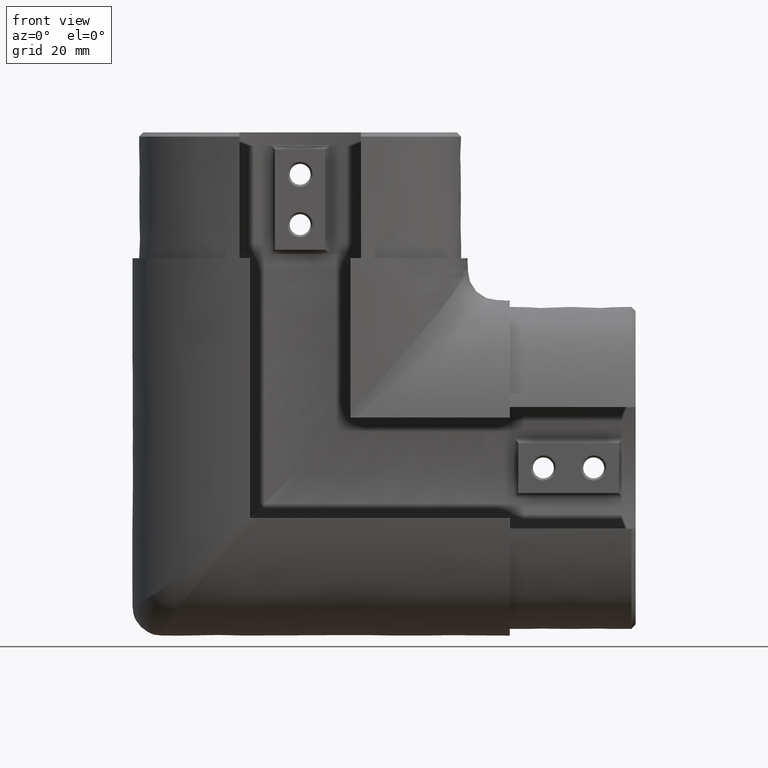
[diagram: clean part render]
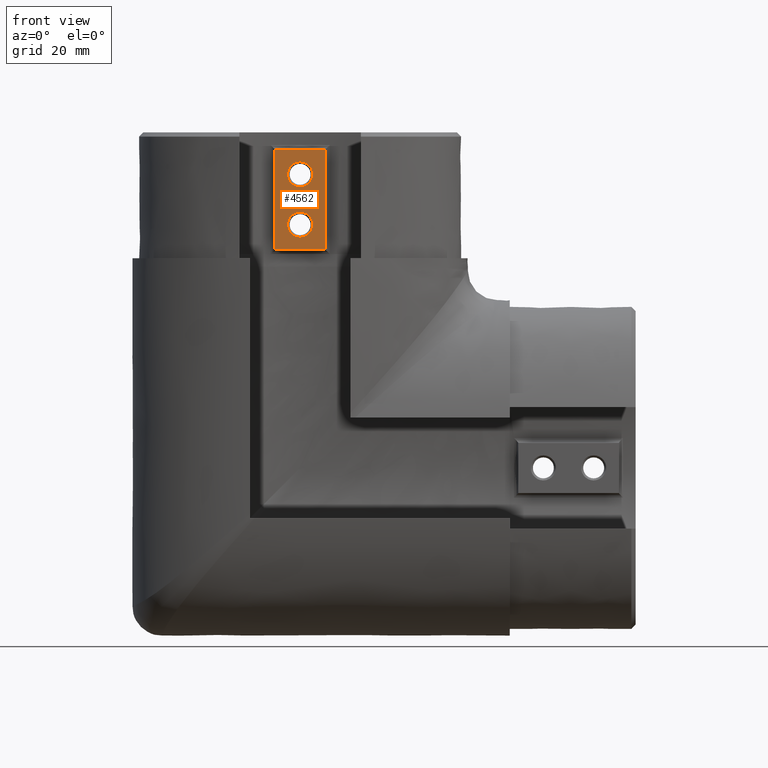
[diagram: same view with one face highlighted and labeled with its STEP entity id]
A machine part, front view. The second image highlights one B-rep face of the part: STEP entity #4562.
In plain terms, the highlighted planar face has unit normal (0, -1, 0).
Its self-contained STEP definition (entity closure, byte-faithful):
#214 = ORIENTED_EDGE ( 'NONE', *, *, #1463, .T. ) ;
#651 = VERTEX_POINT ( 'NONE', #27497 ) ;
#941 = LINE ( 'NONE', #26505, #30233 ) ;
#1177 = EDGE_LOOP ( 'NONE', ( #1530, #214 ) ) ;
#1463 = EDGE_CURVE ( 'NONE', #9443, #16613, #23768, .T. ) ;
#1530 = ORIENTED_EDGE ( 'NONE', *, *, #26988, .T. ) ;
#1560 = CARTESIAN_POINT ( 'NONE',  ( 0.000000000000000000, 30.23217401979663421, 0.000000000000000000 ) ) ;
#1746 = CARTESIAN_POINT ( 'NONE',  ( -6.000000000000000000, 30.23217401979663421, 26.00000000000000355 ) ) ;
#1915 = AXIS2_PLACEMENT_3D ( 'NONE', #27862, #18556, #6902 ) ;
#2496 = EDGE_CURVE ( 'NONE', #651, #28211, #941, .T. ) ;
#3918 = DIRECTION ( 'NONE',  ( 0.000000000000000000, -0.000000000000000000, -1.000000000000000000 ) ) ;
#4028 = DIRECTION ( 'NONE',  ( 0.000000000000000000, -1.000000000000000000, 0.000000000000000000 ) ) ;
#4316 = VECTOR ( 'NONE', #26051, 1000.000000000000000 ) ;
#4562 = ADVANCED_FACE ( 'NONE', ( #15965, #29119, #30237 ), #8828, .T. ) ;
#5110 = CARTESIAN_POINT ( 'NONE',  ( 6.000000000000000000, 30.23217401979663421, 2.000000000000001776 ) ) ;
#5517 = VERTEX_POINT ( 'NONE', #8718 ) ;
#5574 = VERTEX_POINT ( 'NONE', #19948 ) ;
#5697 = DIRECTION ( 'NONE',  ( 0.000000000000000000, 0.000000000000000000, -1.000000000000000000 ) ) ;
#6194 = CARTESIAN_POINT ( 'NONE',  ( -2.081899558550503435E-15, 30.23217401979663421, 22.99999999999997513 ) ) ;
#6902 = DIRECTION ( 'NONE',  ( 0.000000000000000000, 0.000000000000000000, -1.000000000000000000 ) ) ;
#7936 = ORIENTED_EDGE ( 'NONE', *, *, #2496, .F. ) ;
#8718 = CARTESIAN_POINT ( 'NONE',  ( -6.000000000000000000, 30.23217401979663421, 2.000000000000001776 ) ) ;
#8828 = PLANE ( 'NONE',  #14311 ) ;
#9331 = CIRCLE ( 'NONE', #28501, 2.999999999999975131 ) ;
#9443 = VERTEX_POINT ( 'NONE', #16162 ) ;
#10117 = EDGE_CURVE ( 'NONE', #19503, #5517, #24995, .T. ) ;
#10498 = LINE ( 'NONE', #19200, #4316 ) ;
#11004 = CIRCLE ( 'NONE', #1915, 2.999999999999975131 ) ;
#11693 = DIRECTION ( 'NONE',  ( -0.000000000000000000, 1.000000000000000000, -0.000000000000000000 ) ) ;
#12016 = ORIENTED_EDGE ( 'NONE', *, *, #18483, .T. ) ;
#12508 = DIRECTION ( 'NONE',  ( 1.000000000000000000, 0.000000000000000000, 0.000000000000000000 ) ) ;
#12883 = ORIENTED_EDGE ( 'NONE', *, *, #21851, .T. ) ;
#14311 = AXIS2_PLACEMENT_3D ( 'NONE', #1560, #4028, #3918 ) ;
#14685 = ORIENTED_EDGE ( 'NONE', *, *, #21505, .F. ) ;
#15102 = VECTOR ( 'NONE', #26739, 1000.000000000000000 ) ;
#15965 = FACE_BOUND ( 'NONE', #1177, .T. ) ;
#16162 = CARTESIAN_POINT ( 'NONE',  ( -6.123233995736794879E-16, 30.23217401979663421, 10.99999999999997513 ) ) ;
#16613 = VERTEX_POINT ( 'NONE', #19315 ) ;
#16838 = DIRECTION ( 'NONE',  ( 0.000000000000000000, 0.000000000000000000, -1.000000000000000000 ) ) ;
#17263 = CARTESIAN_POINT ( 'NONE',  ( -2.449293598294706513E-15, 30.23217401979663421, 20.00000000000000000 ) ) ;
#17522 = ORIENTED_EDGE ( 'NONE', *, *, #23596, .F. ) ;
#18188 = VERTEX_POINT ( 'NONE', #6194 ) ;
#18483 = EDGE_CURVE ( 'NONE', #18188, #5574, #11004, .T. ) ;
#18556 = DIRECTION ( 'NONE',  ( -0.000000000000000000, 1.000000000000000000, -0.000000000000000000 ) ) ;
#18867 = EDGE_LOOP ( 'NONE', ( #17522, #7936, #14685, #24927 ) ) ;
#19037 = EDGE_LOOP ( 'NONE', ( #12883, #12016 ) ) ;
#19200 = CARTESIAN_POINT ( 'NONE',  ( 6.000000000000000000, 30.23217401979663421, 26.00000000000000355 ) ) ;
#19279 = DIRECTION ( 'NONE',  ( -0.000000000000000000, 1.000000000000000000, -0.000000000000000000 ) ) ;
#19315 = CARTESIAN_POINT ( 'NONE',  ( -9.797174393178823685E-16, 30.23217401979663421, 5.000000000000024869 ) ) ;
#19503 = VERTEX_POINT ( 'NONE', #5110 ) ;
#19948 = CARTESIAN_POINT ( 'NONE',  ( -2.449293598294706513E-15, 30.23217401979663421, 17.00000000000002487 ) ) ;
#20762 = AXIS2_PLACEMENT_3D ( 'NONE', #23318, #11693, #28028 ) ;
#21505 = EDGE_CURVE ( 'NONE', #5517, #651, #29222, .T. ) ;
#21520 = CARTESIAN_POINT ( 'NONE',  ( -9.797174393178823685E-16, 30.23217401979663421, 8.000000000000000000 ) ) ;
#21851 = EDGE_CURVE ( 'NONE', #5574, #18188, #24093, .T. ) ;
#23318 = CARTESIAN_POINT ( 'NONE',  ( -9.797174393178823685E-16, 30.23217401979663421, 8.000000000000000000 ) ) ;
#23596 = EDGE_CURVE ( 'NONE', #28211, #19503, #10498, .T. ) ;
#23768 = CIRCLE ( 'NONE', #20762, 2.999999999999975131 ) ;
#24093 = CIRCLE ( 'NONE', #25738, 2.999999999999975131 ) ;
#24927 = ORIENTED_EDGE ( 'NONE', *, *, #10117, .F. ) ;
#24995 = LINE ( 'NONE', #28692, #15102 ) ;
#25738 = AXIS2_PLACEMENT_3D ( 'NONE', #17263, #29011, #5697 ) ;
#26051 = DIRECTION ( 'NONE',  ( 0.000000000000000000, 0.000000000000000000, -1.000000000000000000 ) ) ;
#26288 = VECTOR ( 'NONE', #27516, 1000.000000000000000 ) ;
#26505 = CARTESIAN_POINT ( 'NONE',  ( -6.000000000000000000, 30.23217401979663421, 26.00000000000000355 ) ) ;
#26739 = DIRECTION ( 'NONE',  ( -1.000000000000000000, -0.000000000000000000, -0.000000000000000000 ) ) ;
#26988 = EDGE_CURVE ( 'NONE', #16613, #9443, #9331, .T. ) ;
#27293 = CARTESIAN_POINT ( 'NONE',  ( 6.000000000000000000, 30.23217401979663421, 26.00000000000000355 ) ) ;
#27497 = CARTESIAN_POINT ( 'NONE',  ( -6.000000000000000000, 30.23217401979663421, 26.00000000000000355 ) ) ;
#27516 = DIRECTION ( 'NONE',  ( -0.000000000000000000, -0.000000000000000000, 1.000000000000000000 ) ) ;
#27862 = CARTESIAN_POINT ( 'NONE',  ( -2.449293598294706513E-15, 30.23217401979663421, 20.00000000000000000 ) ) ;
#28028 = DIRECTION ( 'NONE',  ( 0.000000000000000000, 0.000000000000000000, -1.000000000000000000 ) ) ;
#28211 = VERTEX_POINT ( 'NONE', #27293 ) ;
#28501 = AXIS2_PLACEMENT_3D ( 'NONE', #21520, #19279, #16838 ) ;
#28692 = CARTESIAN_POINT ( 'NONE',  ( -6.000000000000000000, 30.23217401979663421, 2.000000000000001776 ) ) ;
#29011 = DIRECTION ( 'NONE',  ( -0.000000000000000000, 1.000000000000000000, -0.000000000000000000 ) ) ;
#29119 = FACE_BOUND ( 'NONE', #19037, .T. ) ;
#29222 = LINE ( 'NONE', #1746, #26288 ) ;
#30233 = VECTOR ( 'NONE', #12508, 1000.000000000000000 ) ;
#30237 = FACE_OUTER_BOUND ( 'NONE', #18867, .T. ) ;